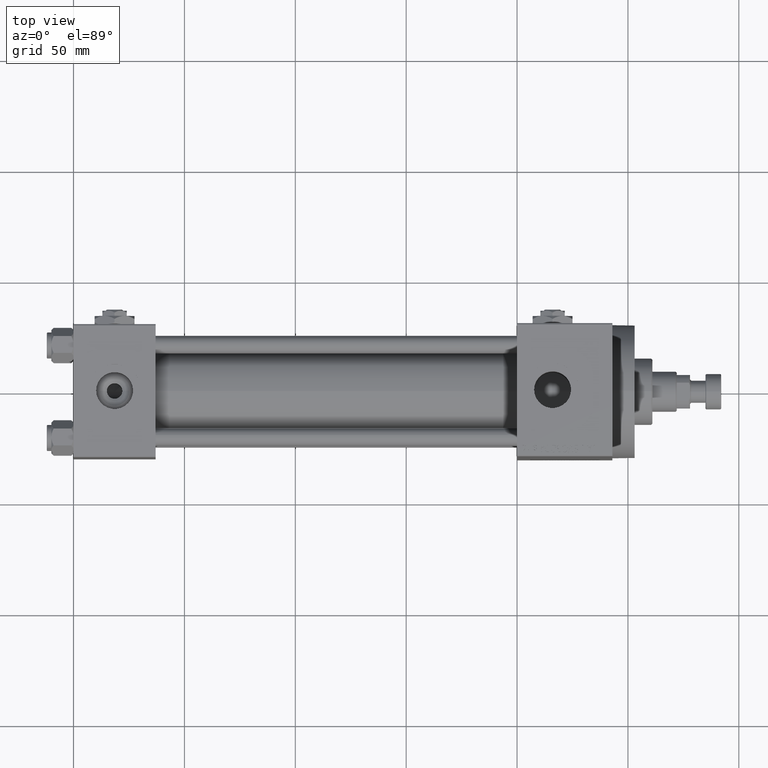
[diagram: clean part render]
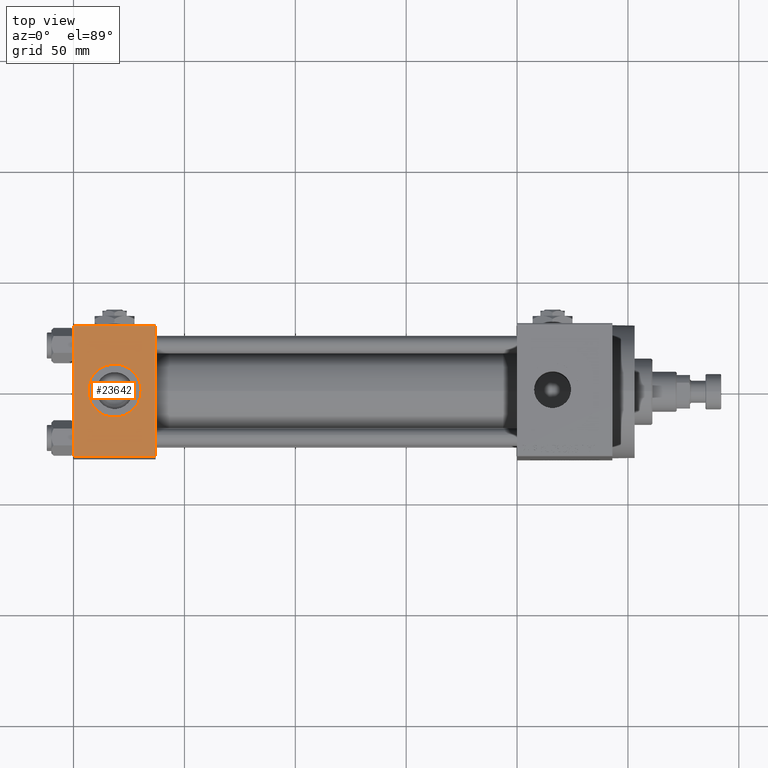
[diagram: same view with one face highlighted and labeled with its STEP entity id]
A machine part, top view. The second image highlights one B-rep face of the part: STEP entity #23642.
In plain terms, the highlighted planar face has unit normal (0, 0, -1).
Its self-contained STEP definition (entity closure, byte-faithful):
#204 = EDGE_CURVE ( 'NONE', #19546, #13855, #12301, .T. ) ;
#1143 = CARTESIAN_POINT ( 'NONE',  ( 30.50000000000000000, -3.469446951953614978E-15, 29.99999999999999645 ) ) ;
#2988 = PLANE ( 'NONE',  #18431 ) ;
#4265 = CARTESIAN_POINT ( 'NONE',  ( 0.000000000000000000, -29.49999999999998579, 29.99999999999999289 ) ) ;
#4588 = VERTEX_POINT ( 'NONE', #1143 ) ;
#4700 = DIRECTION ( 'NONE',  ( 0.000000000000000000, 0.000000000000000000, 1.000000000000000000 ) ) ;
#4749 = DIRECTION ( 'NONE',  ( 1.000000000000000000, 0.000000000000000000, 0.000000000000000000 ) ) ;
#5243 = CARTESIAN_POINT ( 'NONE',  ( 0.000000000000000000, 29.99999999999999289, 30.00000000000000000 ) ) ;
#5663 = CARTESIAN_POINT ( 'NONE',  ( 37.00000000000000000, -29.50000000000000000, 29.99999999999999289 ) ) ;
#5800 = EDGE_LOOP ( 'NONE', ( #6168, #22991, #48839, #37349 ) ) ;
#5954 = LINE ( 'NONE', #31830, #34792 ) ;
#6168 = ORIENTED_EDGE ( 'NONE', *, *, #204, .T. ) ;
#6592 = EDGE_CURVE ( 'NONE', #13855, #10637, #36343, .T. ) ;
#7503 = FACE_OUTER_BOUND ( 'NONE', #5800, .T. ) ;
#7698 = EDGE_CURVE ( 'NONE', #4588, #46767, #20265, .T. ) ;
#7775 = EDGE_CURVE ( 'NONE', #42949, #10637, #5954, .T. ) ;
#10637 = VERTEX_POINT ( 'NONE', #42040 ) ;
#12301 = LINE ( 'NONE', #5243, #34609 ) ;
#13855 = VERTEX_POINT ( 'NONE', #4265 ) ;
#14818 = CARTESIAN_POINT ( 'NONE',  ( 0.000000000000000000, 29.49999999999999289, 30.00000000000000000 ) ) ;
#15051 = DIRECTION ( 'NONE',  ( -1.000000000000000000, 0.000000000000000000, 0.000000000000000000 ) ) ;
#16552 = DIRECTION ( 'NONE',  ( 0.000000000000000000, -1.000000000000000000, -1.156482317317871725E-16 ) ) ;
#17257 = DIRECTION ( 'NONE',  ( 0.000000000000000000, -1.000000000000000000, -1.156482317317871725E-16 ) ) ;
#17962 = CARTESIAN_POINT ( 'NONE',  ( 6.499999999999997335, -1.999870792976790833E-15, 29.99999999999999645 ) ) ;
#18431 = AXIS2_PLACEMENT_3D ( 'NONE', #23063, #26581, #41698 ) ;
#19546 = VERTEX_POINT ( 'NONE', #25471 ) ;
#20028 = DIRECTION ( 'NONE',  ( 1.000000000000000000, 0.000000000000000000, 0.000000000000000000 ) ) ;
#20265 = CIRCLE ( 'NONE', #33167, 12.00000000000000000 ) ;
#20996 = DIRECTION ( 'NONE',  ( 1.000000000000000000, 0.000000000000000000, 0.000000000000000000 ) ) ;
#21114 = AXIS2_PLACEMENT_3D ( 'NONE', #39700, #47484, #4749 ) ;
#22991 = ORIENTED_EDGE ( 'NONE', *, *, #6592, .T. ) ;
#23063 = CARTESIAN_POINT ( 'NONE',  ( 37.00000000000000000, 29.99999999999999289, 30.00000000000000000 ) ) ;
#23642 = ADVANCED_FACE ( 'NONE', ( #37421, #7503 ), #2988, .F. ) ;
#25471 = CARTESIAN_POINT ( 'NONE',  ( 0.000000000000000000, 29.49999999999999289, 30.00000000000000000 ) ) ;
#26581 = DIRECTION ( 'NONE',  ( 0.000000000000000000, 1.156482317317871725E-16, -1.000000000000000000 ) ) ;
#29077 = VECTOR ( 'NONE', #15051, 1000.000000000000000 ) ;
#30894 = LINE ( 'NONE', #14818, #29077 ) ;
#31830 = CARTESIAN_POINT ( 'NONE',  ( 37.00000000000000000, 29.99999999999999289, 30.00000000000000000 ) ) ;
#32308 = EDGE_CURVE ( 'NONE', #46767, #4588, #34811, .T. ) ;
#33167 = AXIS2_PLACEMENT_3D ( 'NONE', #39153, #4700, #20028 ) ;
#34609 = VECTOR ( 'NONE', #16552, 1000.000000000000000 ) ;
#34792 = VECTOR ( 'NONE', #17257, 1000.000000000000000 ) ;
#34811 = CIRCLE ( 'NONE', #21114, 12.00000000000000000 ) ;
#36343 = LINE ( 'NONE', #5663, #43538 ) ;
#37024 = CARTESIAN_POINT ( 'NONE',  ( 37.00000000000000000, 29.49999999999999289, 30.00000000000000000 ) ) ;
#37349 = ORIENTED_EDGE ( 'NONE', *, *, #47089, .T. ) ;
#37421 = FACE_BOUND ( 'NONE', #45765, .T. ) ;
#39153 = CARTESIAN_POINT ( 'NONE',  ( 18.50000000000000000, -3.469446951953614978E-15, 29.99999999999999645 ) ) ;
#39700 = CARTESIAN_POINT ( 'NONE',  ( 18.50000000000000000, -3.469446951953614978E-15, 29.99999999999999645 ) ) ;
#41698 = DIRECTION ( 'NONE',  ( 0.000000000000000000, 1.000000000000000000, 1.156482317317871725E-16 ) ) ;
#42040 = CARTESIAN_POINT ( 'NONE',  ( 37.00000000000000000, -29.49999999999998579, 29.99999999999999289 ) ) ;
#42949 = VERTEX_POINT ( 'NONE', #37024 ) ;
#43538 = VECTOR ( 'NONE', #20996, 1000.000000000000000 ) ;
#43599 = ORIENTED_EDGE ( 'NONE', *, *, #7698, .F. ) ;
#45765 = EDGE_LOOP ( 'NONE', ( #43599, #49617 ) ) ;
#46767 = VERTEX_POINT ( 'NONE', #17962 ) ;
#47089 = EDGE_CURVE ( 'NONE', #42949, #19546, #30894, .T. ) ;
#47484 = DIRECTION ( 'NONE',  ( 0.000000000000000000, 0.000000000000000000, 1.000000000000000000 ) ) ;
#48839 = ORIENTED_EDGE ( 'NONE', *, *, #7775, .F. ) ;
#49617 = ORIENTED_EDGE ( 'NONE', *, *, #32308, .F. ) ;